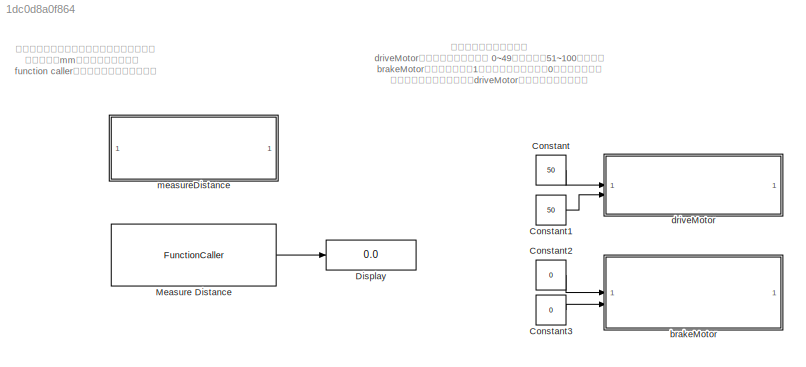
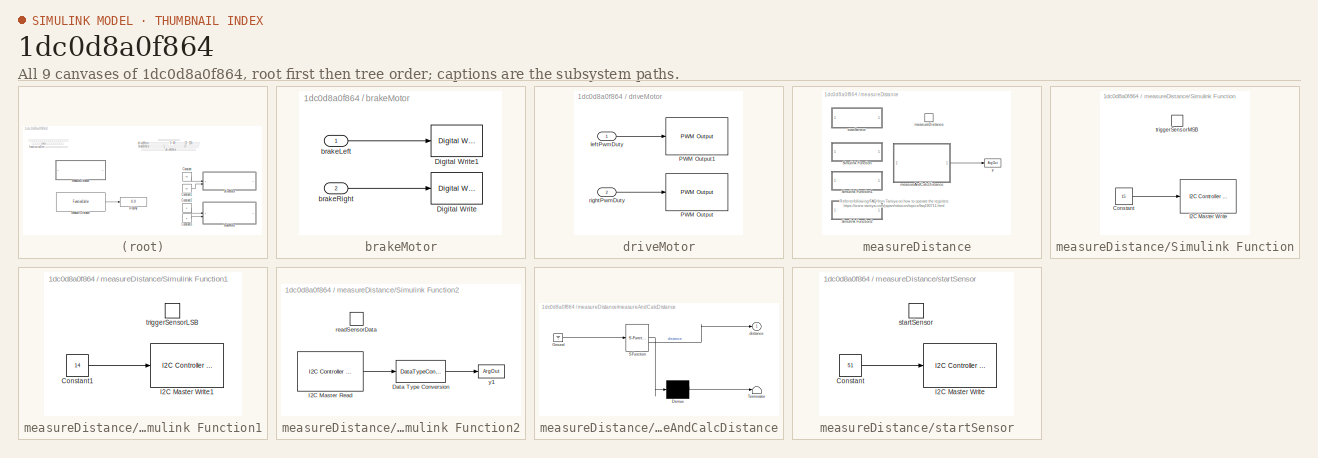
[diagram: thumbnail index - all 9 canvases of the model, root first then tree order]
MODEL slx_1dc0d8a0f864
KIND model
CONFIG AbsTol = auto
CONFIG EnableMultiTasking = off
CONFIG FixedStep = 1/10
CONFIG MaxStep = auto
CONFIG MinStep = auto
CONFIG RelTol = 1e-3
CONFIG SampleTimeConstraint = Unconstrained
CONFIG SolverName = FixedStepAuto
CONFIG StartTime = 0.0
CONFIG StopTime = inf
BLOCK [Constant] Constant
  SampleTime = 1/10
  Value = 50
BLOCK [Constant] Constant1
  SampleTime = 1/10
  Value = 50
BLOCK [Constant] Constant2
  Value = 0
BLOCK [Constant] Constant3
  Value = 0
BLOCK [Display] Display
  Decimation = 1
BLOCK [FunctionCaller] Measure Distance
  FunctionPrototype = y = measureDistance()
  InputArgumentSpecifications = <Enter example>
  OutputArgumentSpecifications = double(1)
  SampleTime = 1/10
BLOCK [SubSystem] brakeMotor
BLOCK [Reference] brakeMotor/Digital Write  REF=mbedblockslib/Digital Write
  SourceBlock = mbedblockslib/Digital Write
  SourceType = mbed.DigitalWrite
BLOCK [Reference] brakeMotor/Digital Write1  REF=mbedblockslib/Digital Write
  SourceBlock = mbedblockslib/Digital Write
  SourceType = mbed.DigitalWrite
BLOCK [Inport] brakeMotor/brakeLeft
BLOCK [Inport] brakeMotor/brakeRight
  Port = 2
BLOCK [SubSystem] driveMotor
  TreatAsAtomicUnit = on
BLOCK [Reference] driveMotor/PWM Output  REF=mbedblockslib/PWM Output
  SourceBlock = mbedblockslib/PWM Output
  SourceType = mbed.PWMOutput
BLOCK [Reference] driveMotor/PWM Output1  REF=mbedblockslib/PWM Output
  SourceBlock = mbedblockslib/PWM Output
  SourceType = mbed.PWMOutput
BLOCK [Inport] driveMotor/leftPwmDuty
BLOCK [Inport] driveMotor/rightPwmDuty
  Port = 2
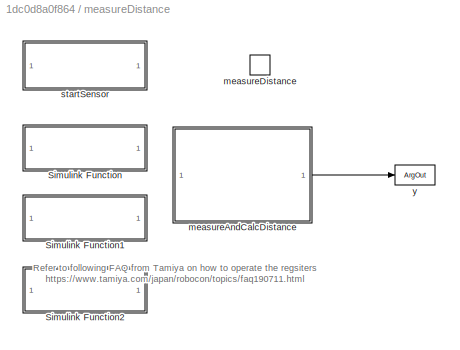
BLOCK [SubSystem] measureDistance
  TreatAsAtomicUnit = on
BLOCK [SubSystem] measureDistance/Simulink Function
  TreatAsAtomicUnit = on
BLOCK [Constant] measureDistance/Simulink Function/Constant
  OutDataTypeStr = uint8
  Value = 15
BLOCK [Reference] measureDistance/Simulink Function/I2C Master Write  REF=mbedblockslib/I2C Controller Write
  SourceBlock = mbedblockslib/I2C Controller Write
  SourceType = mbed.I2CMasterWrite
BLOCK [TriggerPort] measureDistance/Simulink Function/triggerSensorMSB
  FunctionName = triggerSensorMSB
  FunctionVisibility = scoped
  IsSimulinkFunction = on
  StatesWhenEnabling = held
  TriggerType = function-call
  VariantControl = (inherit)
BLOCK [SubSystem] measureDistance/Simulink Function1
  TreatAsAtomicUnit = on
BLOCK [Constant] measureDistance/Simulink Function1/Constant1
  OutDataTypeStr = uint8
  Value = 14
BLOCK [Reference] measureDistance/Simulink Function1/I2C Master Write1  REF=mbedblockslib/I2C Controller Write
  SourceBlock = mbedblockslib/I2C Controller Write
  SourceType = mbed.I2CMasterWrite
BLOCK [TriggerPort] measureDistance/Simulink Function1/triggerSensorLSB
  FunctionName = triggerSensorLSB
  FunctionVisibility = scoped
  IsSimulinkFunction = on
  StatesWhenEnabling = held
  TriggerType = function-call
  VariantControl = (inherit)
BLOCK [SubSystem] measureDistance/Simulink Function2
  TreatAsAtomicUnit = on
BLOCK [DataTypeConversion] measureDistance/Simulink Function2/Data Type Conversion
  RndMeth = Floor
  SaturateOnIntegerOverflow = off
BLOCK [Reference] measureDistance/Simulink Function2/I2C Master Read  REF=mbedblockslib/I2C Controller Read
  SourceBlock = mbedblockslib/I2C Controller Read
  SourceType = mbed.I2CMasterRead
BLOCK [TriggerPort] measureDistance/Simulink Function2/readSensorData
  FunctionName = readSensorData
  FunctionVisibility = scoped
  IsSimulinkFunction = on
  StatesWhenEnabling = held
  TriggerType = function-call
  VariantControl = (inherit)
BLOCK [ArgOut] measureDistance/Simulink Function2/y1
  ArgumentName = y1
  DisableCoverage = on
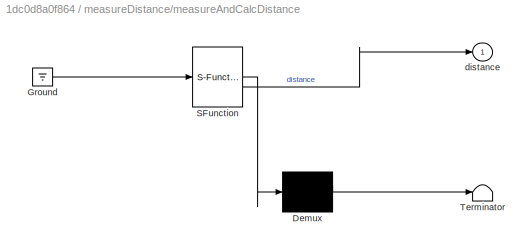
BLOCK [SubSystem] measureDistance/measureAndCalcDistance
  ErrorFcn = Stateflow.Translate.translate
  PermitHierarchicalResolution = ExplicitOnly
  SFBlockType = MATLAB Function
  TreatAsAtomicUnit = on
BLOCK [Demux] measureDistance/measureAndCalcDistance/ Demux 
  Outputs = 1
BLOCK [Ground] measureDistance/measureAndCalcDistance/ Ground 
BLOCK [S-Function] measureDistance/measureAndCalcDistance/ SFunction 
  EnableBusSupport = on
  FunctionName = sf_sfun
  PortCounts = [1 2]
  SFcnIsStateOwnerBlock = off
  SFunctionDeploymentMode = off
  Tag = Stateflow S-Function 1
BLOCK [Terminator] measureDistance/measureAndCalcDistance/ Terminator 
BLOCK [Outport] measureDistance/measureAndCalcDistance/distance
BLOCK [TriggerPort] measureDistance/measureDistance
  FunctionName = measureDistance
  FunctionVisibility = scoped
  IsSimulinkFunction = on
  StatesWhenEnabling = held
  TriggerType = function-call
  VariantControl = (inherit)
BLOCK [SubSystem] measureDistance/startSensor
BLOCK [Constant] measureDistance/startSensor/Constant
  OutDataTypeStr = uint8
  Value = 51
BLOCK [Reference] measureDistance/startSensor/I2C Master Write  REF=mbedblockslib/I2C Controller Write
  SourceBlock = mbedblockslib/I2C Controller Write
  SourceType = mbed.I2CMasterWrite
BLOCK [TriggerPort] measureDistance/startSensor/startSensor
  FunctionName = startSensor
  FunctionVisibility = scoped
  IsSimulinkFunction = on
  StatesWhenEnabling = held
  TriggerType = function-call
  VariantControl = (inherit)
BLOCK [ArgOut] measureDistance/y
  ArgumentName = y
  DisableCoverage = on
ANNOTATION (root): モーター制御のブロック driveMotorブロックへの入力は、 0~49が逆回転、51~100が正回転 brakeMotorブロックへは、1入力でモーター停止、0でモーター回転 （回転方向と、スピードはdriveMotorへの入力数値による）
ANNOTATION (root): 測距センサーからデータを取得する関数です 測定距離がmmにて取得出来ます。 function callerブロックの出力を使います
ANNOTATION measureDistance: Refer to following FAQ from Tamiya on how to operate the regsiters https://www.tamiya.com/japan/robocon/topics/faq190711.html
LINE Constant1:1 -> driveMotor:2
LINE Constant2:1 -> brakeMotor:1
LINE Constant3:1 -> brakeMotor:2
LINE Constant:1 -> driveMotor:1
LINE Measure Distance:1 -> Display:1
LINE brakeMotor/brakeLeft:1 -> brakeMotor/Digital Write1:1
LINE brakeMotor/brakeRight:1 -> brakeMotor/Digital Write:1
LINE driveMotor/leftPwmDuty:1 -> driveMotor/PWM Output1:1
LINE driveMotor/rightPwmDuty:1 -> driveMotor/PWM Output:1
LINE measureDistance/Simulink Function/Constant:1 -> measureDistance/Simulink Function/I2C Master Write:1
LINE measureDistance/Simulink Function1/Constant1:1 -> measureDistance/Simulink Function1/I2C Master Write1:1
LINE measureDistance/Simulink Function2/Data Type Conversion:1 -> measureDistance/Simulink Function2/y1:1
LINE measureDistance/Simulink Function2/I2C Master Read:1 -> measureDistance/Simulink Function2/Data Type Conversion:1
LINE measureDistance/measureAndCalcDistance:1 -> measureDistance/y:1
LINE measureDistance/startSensor/Constant:1 -> measureDistance/startSensor/I2C Master Write:1
CHART measureDistance/measureAndCalcDistance states=1 transitions=1
  STATE_LABEL 'eML_blk_kernel()'
  STATE_LABEL 'SCRIPT:\nfunction distance = measureAndCalcDistance\n%#codegen\n\nstartSensor();\nreadSensorData();\n\ntriggerSensorMSB();\nmsbData = readSensorData();\ntriggerSensorLSB();\nlsbData = readSensorData();\n\n%%\ntravelTime = (msbData*256+lsbData);\ndistance = (((travelTime - 160) / 2) * 0.315) / 10;\n'
CHART  states=0 transitions=0
